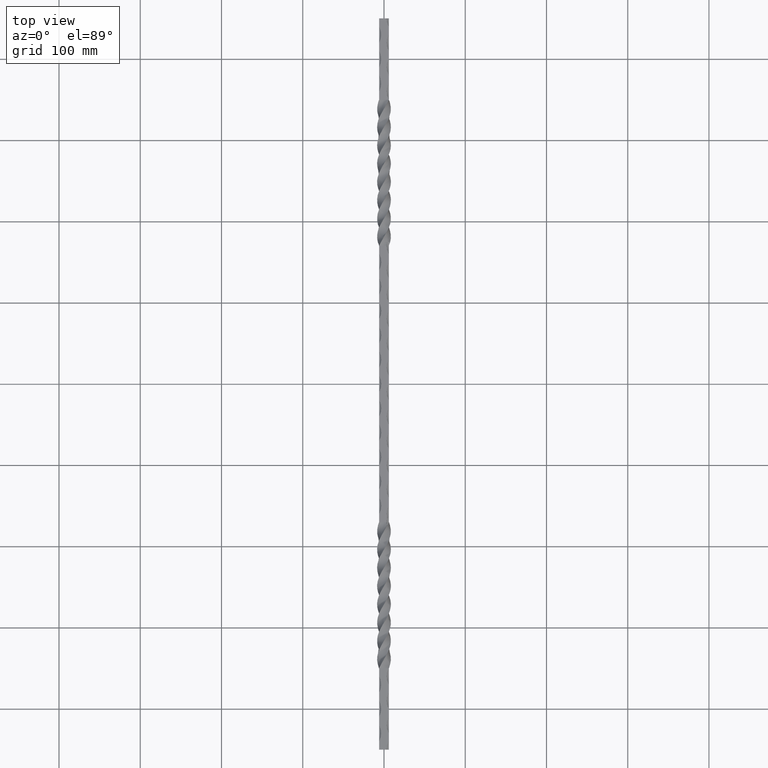
[diagram: clean part render]
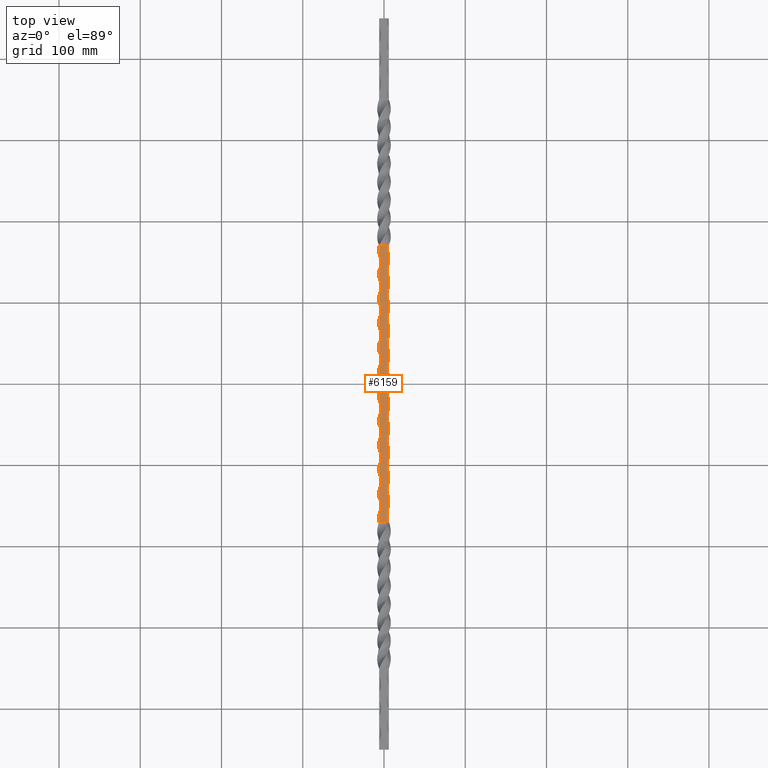
[diagram: same view with one face highlighted and labeled with its STEP entity id]
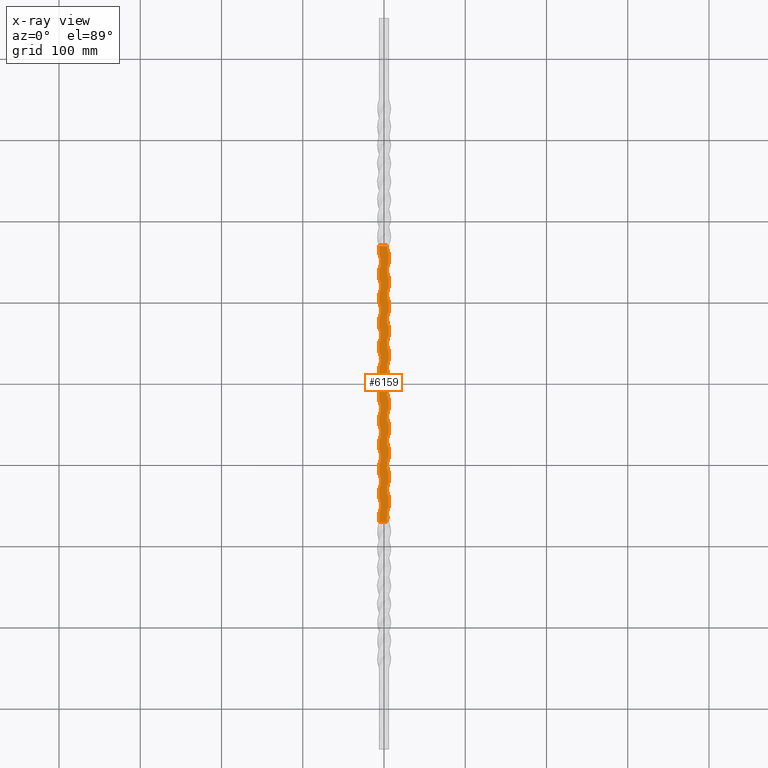
[diagram: x-ray of the same camera — body ghosted, the highlighted face saturated]
A machine part, top view. The second image highlights one B-rep face of the part: STEP entity #6159.
The next image is the same camera in x-ray: the body ghosted, the highlighted face saturated — about 0% of this face is hidden behind the body in this view.
In plain terms, the highlighted planar face has unit normal (0, 0, -1).
Its self-contained STEP definition (entity closure, byte-faithful):
#38 = CARTESIAN_POINT ( 'NONE',  ( 24.74999999999990763, -40.00000000000002132, 6.000000004489439043 ) ) ;
#50 = DIRECTION ( 'NONE',  ( -1.000000000000000000, 0.000000000000000000, -2.394360037036475492E-10 ) ) ;
#58 = DIRECTION ( 'NONE',  ( -1.000000000000000000, -5.224578939412522248E-15, -2.394360037036475492E-10 ) ) ;
#76 = ORIENTED_EDGE ( 'NONE', *, *, #530, .T. ) ;
#97 = CARTESIAN_POINT ( 'NONE',  ( 6.000000000000009770, 29.99999999999997158, 6.000000000000015099 ) ) ;
#178 = DIRECTION ( 'NONE',  ( -2.394360027137099487E-10, -0.000000000000000000, 1.000000000000000000 ) ) ;
#241 = PLANE ( 'NONE',  #12927 ) ;
#253 = VERTEX_POINT ( 'NONE', #7351 ) ;
#270 = AXIS2_PLACEMENT_3D ( 'NONE', #11915, #869, #50 ) ;
#290 = CARTESIAN_POINT ( 'NONE',  ( -6.000000006995538371, 79.99999999999997158, 5.999999997126758799 ) ) ;
#291 = DIRECTION ( 'NONE',  ( -1.000000000000000000, 0.000000000000000000, -2.394360027137099487E-10 ) ) ;
#308 = CIRCLE ( 'NONE', #6689, 21.24999999999991473 ) ;
#310 = LINE ( 'NONE', #3577, #1914 ) ;
#351 = CARTESIAN_POINT ( 'NONE',  ( 24.74999999999990763, -160.0000000000000284, 6.000000004489439043 ) ) ;
#427 = CIRCLE ( 'NONE', #8337, 21.24999999999991473 ) ;
#438 = VERTEX_POINT ( 'NONE', #9987 ) ;
#447 = ORIENTED_EDGE ( 'NONE', *, *, #6530, .F. ) ;
#451 = CARTESIAN_POINT ( 'NONE',  ( 6.000000000000000888, 16.97056276331698754, 6.000000000000000888 ) ) ;
#478 = VERTEX_POINT ( 'NONE', #9252 ) ;
#514 = CIRCLE ( 'NONE', #4911, 21.24999999999992539 ) ;
#530 = EDGE_CURVE ( 'NONE', #613, #3887, #2408, .T. ) ;
#532 = DIRECTION ( 'NONE',  ( -1.000000000000000000, 0.000000000000000000, -2.394360037036474458E-10 ) ) ;
#537 = ORIENTED_EDGE ( 'NONE', *, *, #1621, .T. ) ;
#547 = VERTEX_POINT ( 'NONE', #1356 ) ;
#564 = CARTESIAN_POINT ( 'NONE',  ( 24.74999999999991118, 139.9999999999999716, 6.000000004489439931 ) ) ;
#572 = ORIENTED_EDGE ( 'NONE', *, *, #6654, .T. ) ;
#610 = DIRECTION ( 'NONE',  ( -1.000000000000000000, -5.224578939412522248E-15, -2.394360037036475492E-10 ) ) ;
#613 = VERTEX_POINT ( 'NONE', #10343 ) ;
#657 = VERTEX_POINT ( 'NONE', #6652 ) ;
#671 = EDGE_CURVE ( 'NONE', #1671, #721, #9749, .T. ) ;
#700 = AXIS2_PLACEMENT_3D ( 'NONE', #351, #3248, #5290 ) ;
#721 = VERTEX_POINT ( 'NONE', #12563 ) ;
#769 = AXIS2_PLACEMENT_3D ( 'NONE', #12562, #3641, #532 ) ;
#770 = CARTESIAN_POINT ( 'NONE',  ( 6.000000000000000888, 16.97056276331698754, 6.000000000000000888 ) ) ;
#779 = DIRECTION ( 'NONE',  ( -1.000000000000000000, 0.000000000000000000, -2.394360037036474458E-10 ) ) ;
#786 = EDGE_CURVE ( 'NONE', #4450, #10603, #5357, .T. ) ;
#803 = EDGE_CURVE ( 'NONE', #1331, #11370, #308, .T. ) ;
#869 = DIRECTION ( 'NONE',  ( -2.394360027137099487E-10, -0.000000000000000000, 1.000000000000000000 ) ) ;
#905 = DIRECTION ( 'NONE',  ( -2.394360027137099487E-10, -0.000000000000000000, 1.000000000000000000 ) ) ;
#927 = VECTOR ( 'NONE', #10280, 1000.000000000000000 ) ;
#942 = VERTEX_POINT ( 'NONE', #7262 ) ;
#946 = DIRECTION ( 'NONE',  ( -1.000000000000000000, 0.000000000000000000, -2.394360037036475492E-10 ) ) ;
#953 = VECTOR ( 'NONE', #3741, 1000.000000000000000 ) ;
#985 = ORIENTED_EDGE ( 'NONE', *, *, #11757, .T. ) ;
#1015 = EDGE_CURVE ( 'NONE', #11370, #1924, #3786, .T. ) ;
#1018 = DIRECTION ( 'NONE',  ( -1.000000000000000000, 0.000000000000000000, -2.394360037036474458E-10 ) ) ;
#1023 = CARTESIAN_POINT ( 'NONE',  ( -24.75000000699544955, 29.99999999999997158, 5.999999992637335744 ) ) ;
#1042 = AXIS2_PLACEMENT_3D ( 'NONE', #2961, #3191, #3441 ) ;
#1114 = VECTOR ( 'NONE', #9289, 1000.000000000000000 ) ;
#1154 = CARTESIAN_POINT ( 'NONE',  ( -6.000000006995539259, -130.0000000000000568, 5.999999997126766793 ) ) ;
#1197 = DIRECTION ( 'NONE',  ( -0.000000000000000000, -1.000000000000000000, -0.000000000000000000 ) ) ;
#1233 = EDGE_CURVE ( 'NONE', #1435, #10347, #7241, .T. ) ;
#1284 = CARTESIAN_POINT ( 'NONE',  ( 24.74999999999989697, 169.9999999999999432, 6.000000004489419503 ) ) ;
#1286 = ORIENTED_EDGE ( 'NONE', *, *, #8007, .F. ) ;
#1331 = VERTEX_POINT ( 'NONE', #11615 ) ;
#1356 = CARTESIAN_POINT ( 'NONE',  ( 6.000000000000004441, 69.99999999999997158, 6.000000000000001776 ) ) ;
#1368 = DIRECTION ( 'NONE',  ( -1.000000000000000000, 0.000000000000000000, -2.394360037036474458E-10 ) ) ;
#1373 = CARTESIAN_POINT ( 'NONE',  ( -6.000000006995539259, 16.97056276331698754, 5.999999997126768569 ) ) ;
#1433 = CARTESIAN_POINT ( 'NONE',  ( -6.000000006995539259, 16.97056276331698754, 5.999999997126768569 ) ) ;
#1435 = VERTEX_POINT ( 'NONE', #5710 ) ;
#1462 = VERTEX_POINT ( 'NONE', #4966 ) ;
#1464 = CARTESIAN_POINT ( 'NONE',  ( 3.499999999999982236, -169.9999999999999716, 6.000000004489426608 ) ) ;
#1524 = CIRCLE ( 'NONE', #3969, 21.24999999999991473 ) ;
#1525 = VERTEX_POINT ( 'NONE', #5106 ) ;
#1607 = DIRECTION ( 'NONE',  ( -1.000000000000000000, 0.000000000000000000, -2.394360037036475492E-10 ) ) ;
#1609 = VERTEX_POINT ( 'NONE', #3432 ) ;
#1615 = CARTESIAN_POINT ( 'NONE',  ( -6.000000006995540147, 39.99999999999997868, 5.999999997126761464 ) ) ;
#1621 = EDGE_CURVE ( 'NONE', #6087, #9137, #12109, .T. ) ;
#1643 = VERTEX_POINT ( 'NONE', #7767 ) ;
#1668 = CARTESIAN_POINT ( 'NONE',  ( 6.000000000000000888, 16.97056276331698754, 6.000000000000000888 ) ) ;
#1671 = VERTEX_POINT ( 'NONE', #11244 ) ;
#1691 = ORIENTED_EDGE ( 'NONE', *, *, #6184, .F. ) ;
#1721 = VERTEX_POINT ( 'NONE', #2361 ) ;
#1757 = VERTEX_POINT ( 'NONE', #11288 ) ;
#1782 = AXIS2_PLACEMENT_3D ( 'NONE', #1023, #2051, #12071 ) ;
#1851 = DIRECTION ( 'NONE',  ( -2.394360027137099487E-10, -0.000000000000000000, 1.000000000000000000 ) ) ;
#1852 = AXIS2_PLACEMENT_3D ( 'NONE', #2781, #3776, #779 ) ;
#1873 = DIRECTION ( 'NONE',  ( -1.000000000000000000, -5.224578939412522248E-15, -2.394360037036475492E-10 ) ) ;
#1914 = VECTOR ( 'NONE', #11580, 1000.000000000000000 ) ;
#1924 = VERTEX_POINT ( 'NONE', #5282 ) ;
#2041 = ORIENTED_EDGE ( 'NONE', *, *, #6439, .F. ) ;
#2042 = EDGE_CURVE ( 'NONE', #8782, #10605, #4588, .T. ) ;
#2051 = DIRECTION ( 'NONE',  ( -2.394360027137099487E-10, -0.000000000000000000, 1.000000000000000000 ) ) ;
#2144 = EDGE_CURVE ( 'NONE', #547, #1462, #310, .T. ) ;
#2175 = CARTESIAN_POINT ( 'NONE',  ( 24.74999999999990763, -100.0000000000000142, 6.000000004489439043 ) ) ;
#2252 = ORIENTED_EDGE ( 'NONE', *, *, #3486, .T. ) ;
#2289 = DIRECTION ( 'NONE',  ( -1.000000000000000000, 0.000000000000000000, -2.394360037036474458E-10 ) ) ;
#2328 = EDGE_CURVE ( 'NONE', #11529, #9568, #6454, .T. ) ;
#2346 = VECTOR ( 'NONE', #5626, 1000.000000000000000 ) ;
#2352 = ORIENTED_EDGE ( 'NONE', *, *, #6824, .T. ) ;
#2360 = VECTOR ( 'NONE', #11544, 1000.000000000000000 ) ;
#2361 = CARTESIAN_POINT ( 'NONE',  ( 6.000000000000001776, -110.0000000000000284, 6.000000000000000000 ) ) ;
#2408 = LINE ( 'NONE', #12223, #3186 ) ;
#2411 = CARTESIAN_POINT ( 'NONE',  ( -6.000000006995539259, 169.9999999999999716, 5.999999997126768569 ) ) ;
#2425 = ORIENTED_EDGE ( 'NONE', *, *, #12961, .T. ) ;
#2440 = LINE ( 'NONE', #7209, #10263 ) ;
#2462 = ORIENTED_EDGE ( 'NONE', *, *, #3515, .F. ) ;
#2480 = ORIENTED_EDGE ( 'NONE', *, *, #11353, .F. ) ;
#2594 = CARTESIAN_POINT ( 'NONE',  ( 5.999999999999978684, 159.9999999999999716, 5.999999999999993783 ) ) ;
#2650 = AXIS2_PLACEMENT_3D ( 'NONE', #2702, #11780, #11652 ) ;
#2657 = VERTEX_POINT ( 'NONE', #8457 ) ;
#2669 = CIRCLE ( 'NONE', #6088, 21.24999999999992539 ) ;
#2687 = DIRECTION ( 'NONE',  ( -1.000000000000000000, 0.000000000000000000, -2.394360037036474458E-10 ) ) ;
#2692 = CARTESIAN_POINT ( 'NONE',  ( -6.000000006995541035, -80.00000000000001421, 5.999999997126766793 ) ) ;
#2702 = CARTESIAN_POINT ( 'NONE',  ( -24.75000000699544955, 59.99999999999997158, 5.999999992637333968 ) ) ;
#2708 = CARTESIAN_POINT ( 'NONE',  ( -6.000000006995539259, 169.9999999999999716, 5.999999997126768569 ) ) ;
#2781 = CARTESIAN_POINT ( 'NONE',  ( -24.75000000699544955, -60.00000000000002842, 5.999999992637339297 ) ) ;
#2787 = VECTOR ( 'NONE', #7838, 1000.000000000000000 ) ;
#2802 = VERTEX_POINT ( 'NONE', #3544 ) ;
#2916 = ORIENTED_EDGE ( 'NONE', *, *, #4467, .F. ) ;
#2920 = EDGE_CURVE ( 'NONE', #3907, #5982, #10829, .T. ) ;
#2955 = DIRECTION ( 'NONE',  ( -1.000000000000000000, 0.000000000000000000, -2.394360037036475492E-10 ) ) ;
#2961 = CARTESIAN_POINT ( 'NONE',  ( 24.74999999999990763, -10.00000000000002487, 6.000000004489439043 ) ) ;
#2967 = VERTEX_POINT ( 'NONE', #11274 ) ;
#2977 = ORIENTED_EDGE ( 'NONE', *, *, #5734, .F. ) ;
#2998 = VERTEX_POINT ( 'NONE', #6198 ) ;
#3058 = CARTESIAN_POINT ( 'NONE',  ( 0.000000000000000000, -169.9999999999999716, 6.000000000000000888 ) ) ;
#3081 = DIRECTION ( 'NONE',  ( -0.000000000000000000, -1.000000000000000000, -0.000000000000000000 ) ) ;
#3096 = FACE_OUTER_BOUND ( 'NONE', #5009, .T. ) ;
#3103 = DIRECTION ( 'NONE',  ( -1.000000000000000000, 0.000000000000000000, -2.394360037036475492E-10 ) ) ;
#3166 = CIRCLE ( 'NONE', #270, 21.24999999999991473 ) ;
#3186 = VECTOR ( 'NONE', #6356, 1000.000000000000000 ) ;
#3191 = DIRECTION ( 'NONE',  ( -2.394360027137099487E-10, -0.000000000000000000, 1.000000000000000000 ) ) ;
#3248 = DIRECTION ( 'NONE',  ( -2.394360027137099487E-10, -0.000000000000000000, 1.000000000000000000 ) ) ;
#3432 = CARTESIAN_POINT ( 'NONE',  ( -6.000000006995538371, 109.9999999999999716, 5.999999997126757023 ) ) ;
#3441 = DIRECTION ( 'NONE',  ( -1.000000000000000000, 0.000000000000000000, -2.394360037036475492E-10 ) ) ;
#3447 = CIRCLE ( 'NONE', #8074, 21.24999999999991473 ) ;
#3486 = EDGE_CURVE ( 'NONE', #12070, #9387, #10984, .T. ) ;
#3494 = ORIENTED_EDGE ( 'NONE', *, *, #4238, .F. ) ;
#3515 = EDGE_CURVE ( 'NONE', #5271, #2967, #4394, .T. ) ;
#3544 = CARTESIAN_POINT ( 'NONE',  ( 6.000000000000003553, 9.999999999999966249, 6.000000000000001776 ) ) ;
#3564 = LINE ( 'NONE', #7745, #2787 ) ;
#3577 = CARTESIAN_POINT ( 'NONE',  ( 6.000000000000000888, 16.97056276331698754, 6.000000000000000888 ) ) ;
#3593 = VECTOR ( 'NONE', #5766, 1000.000000000000000 ) ;
#3607 = VERTEX_POINT ( 'NONE', #4649 ) ;
#3641 = DIRECTION ( 'NONE',  ( -2.394360027137099487E-10, -0.000000000000000000, 1.000000000000000000 ) ) ;
#3702 = DIRECTION ( 'NONE',  ( -2.394360027137099487E-10, -0.000000000000000000, 1.000000000000000000 ) ) ;
#3741 = DIRECTION ( 'NONE',  ( -0.000000000000000000, -1.000000000000000000, -0.000000000000000000 ) ) ;
#3772 = DIRECTION ( 'NONE',  ( -2.394360027137099487E-10, -0.000000000000000000, 1.000000000000000000 ) ) ;
#3776 = DIRECTION ( 'NONE',  ( -2.394360027137099487E-10, -0.000000000000000000, 1.000000000000000000 ) ) ;
#3786 = LINE ( 'NONE', #9705, #10375 ) ;
#3860 = CARTESIAN_POINT ( 'NONE',  ( -6.000000006995539259, 159.9999999999999716, 5.999999997126756135 ) ) ;
#3887 = VERTEX_POINT ( 'NONE', #1615 ) ;
#3907 = VERTEX_POINT ( 'NONE', #12634 ) ;
#3923 = EDGE_CURVE ( 'NONE', #2657, #1643, #5002, .T. ) ;
#3938 = CARTESIAN_POINT ( 'NONE',  ( 6.000000000000000888, 16.97056276331698754, 6.000000000000000888 ) ) ;
#3942 = LINE ( 'NONE', #4838, #953 ) ;
#3946 = VERTEX_POINT ( 'NONE', #6641 ) ;
#3969 = AXIS2_PLACEMENT_3D ( 'NONE', #5937, #12938, #946 ) ;
#3983 = ORIENTED_EDGE ( 'NONE', *, *, #7926, .T. ) ;
#4000 = VECTOR ( 'NONE', #12826, 1000.000000000000000 ) ;
#4045 = CIRCLE ( 'NONE', #11927, 21.24999999999992539 ) ;
#4046 = EDGE_CURVE ( 'NONE', #7948, #3887, #5627, .T. ) ;
#4048 = VECTOR ( 'NONE', #9411, 1000.000000000000000 ) ;
#4125 = CARTESIAN_POINT ( 'NONE',  ( 6.000000000000002665, -50.00000000000002842, 6.000000000000000000 ) ) ;
#4144 = AXIS2_PLACEMENT_3D ( 'NONE', #1284, #4313, #9312 ) ;
#4191 = CIRCLE ( 'NONE', #769, 21.24999999999992539 ) ;
#4238 = EDGE_CURVE ( 'NONE', #1643, #547, #3447, .T. ) ;
#4305 = DIRECTION ( 'NONE',  ( -0.000000000000000000, -1.000000000000000000, -0.000000000000000000 ) ) ;
#4313 = DIRECTION ( 'NONE',  ( -2.394360027137099487E-10, -0.000000000000000000, 1.000000000000000000 ) ) ;
#4369 = VECTOR ( 'NONE', #8451, 1000.000000000000000 ) ;
#4394 = CIRCLE ( 'NONE', #1852, 21.24999999999992539 ) ;
#4450 = VERTEX_POINT ( 'NONE', #4618 ) ;
#4459 = CIRCLE ( 'NONE', #5336, 21.24999999999991473 ) ;
#4467 = EDGE_CURVE ( 'NONE', #721, #2657, #12349, .T. ) ;
#4499 = EDGE_CURVE ( 'NONE', #6969, #8782, #4681, .T. ) ;
#4519 = DIRECTION ( 'NONE',  ( -0.000000000000000000, -1.000000000000000000, -0.000000000000000000 ) ) ;
#4522 = ORIENTED_EDGE ( 'NONE', *, *, #1015, .F. ) ;
#4546 = AXIS2_PLACEMENT_3D ( 'NONE', #11063, #9140, #3103 ) ;
#4553 = CARTESIAN_POINT ( 'NONE',  ( -6.000000006995539259, 16.97056276331698754, 5.999999997126768569 ) ) ;
#4588 = CIRCLE ( 'NONE', #5288, 21.24999999999991473 ) ;
#4618 = CARTESIAN_POINT ( 'NONE',  ( 6.000000000000003553, 39.99999999999996447, 6.000000000000001776 ) ) ;
#4649 = CARTESIAN_POINT ( 'NONE',  ( -6.000000006995539259, -160.0000000000000284, 5.999999997126768569 ) ) ;
#4659 = AXIS2_PLACEMENT_3D ( 'NONE', #12674, #3702, #2687 ) ;
#4681 = LINE ( 'NONE', #770, #3593 ) ;
#4725 = EDGE_CURVE ( 'NONE', #7948, #478, #11258, .T. ) ;
#4760 = CARTESIAN_POINT ( 'NONE',  ( -6.000000006995539259, 16.97056276331698754, 5.999999997126768569 ) ) ;
#4774 = EDGE_CURVE ( 'NONE', #9568, #1671, #427, .T. ) ;
#4778 = DIRECTION ( 'NONE',  ( -1.000000000000000000, 1.795949010423053586E-15, -2.394360037036474458E-10 ) ) ;
#4799 = EDGE_CURVE ( 'NONE', #1609, #7338, #4845, .T. ) ;
#4838 = CARTESIAN_POINT ( 'NONE',  ( 6.000000000000000888, 16.97056276331698754, 6.000000000000000888 ) ) ;
#4845 = LINE ( 'NONE', #4760, #2346 ) ;
#4911 = AXIS2_PLACEMENT_3D ( 'NONE', #7999, #13018, #1018 ) ;
#4912 = CARTESIAN_POINT ( 'NONE',  ( -24.75000000699544955, -90.00000000000002842, 5.999999992637341073 ) ) ;
#4966 = CARTESIAN_POINT ( 'NONE',  ( 6.000000000000009770, 59.99999999999997158, 6.000000000000015099 ) ) ;
#4977 = ORIENTED_EDGE ( 'NONE', *, *, #10543, .F. ) ;
#4985 = ORIENTED_EDGE ( 'NONE', *, *, #11380, .T. ) ;
#5002 = LINE ( 'NONE', #451, #2360 ) ;
#5009 = EDGE_LOOP ( 'NONE', ( #1286, #2480, #5031, #7182, #10764, #7792, #4522, #9414, #2041, #12620, #12836, #5378, #7482, #2977, #7564, #4977, #8814, #3494, #10978, #2916, #7828, #9001, #6863, #1691, #7701, #2252, #11989, #4985, #6994, #12152, #6280, #572, #10376, #76, #9685, #11420, #8454, #2352, #447, #2425, #2462, #3983, #6045, #9693, #6004, #537, #10707, #985, #5669 ) ) ;
#5031 = ORIENTED_EDGE ( 'NONE', *, *, #10464, .F. ) ;
#5071 = EDGE_CURVE ( 'NONE', #3607, #9137, #4045, .T. ) ;
#5106 = CARTESIAN_POINT ( 'NONE',  ( -6.000000006995538371, -10.00000000000002487, 5.999999997126762352 ) ) ;
#5171 = CARTESIAN_POINT ( 'NONE',  ( 6.000000000000011546, 149.9999999999999716, 6.000000000000015099 ) ) ;
#5182 = VERTEX_POINT ( 'NONE', #290 ) ;
#5271 = VERTEX_POINT ( 'NONE', #11486 ) ;
#5282 = CARTESIAN_POINT ( 'NONE',  ( 6.000000000000007994, -90.00000000000002842, 6.000000000000014211 ) ) ;
#5288 = AXIS2_PLACEMENT_3D ( 'NONE', #38, #905, #2955 ) ;
#5290 = DIRECTION ( 'NONE',  ( -1.000000000000000000, 0.000000000000000000, -2.394360037036475492E-10 ) ) ;
#5336 = AXIS2_PLACEMENT_3D ( 'NONE', #2175, #10130, #58 ) ;
#5357 = LINE ( 'NONE', #3938, #8341 ) ;
#5378 = ORIENTED_EDGE ( 'NONE', *, *, #10203, .F. ) ;
#5434 = CIRCLE ( 'NONE', #12270, 21.24999999999992539 ) ;
#5482 = AXIS2_PLACEMENT_3D ( 'NONE', #8272, #7309, #10419 ) ;
#5626 = DIRECTION ( 'NONE',  ( -0.000000000000000000, -1.000000000000000000, -0.000000000000000000 ) ) ;
#5627 = CIRCLE ( 'NONE', #1782, 21.24999999999992539 ) ;
#5665 = EDGE_CURVE ( 'NONE', #1757, #9387, #4191, .T. ) ;
#5669 = ORIENTED_EDGE ( 'NONE', *, *, #1233, .T. ) ;
#5710 = CARTESIAN_POINT ( 'NONE',  ( -6.000000006995539259, -170.0000000136172105, 5.999999997126768569 ) ) ;
#5727 = CARTESIAN_POINT ( 'NONE',  ( -6.000000006995539259, 16.97056276331698754, 5.999999997126768569 ) ) ;
#5734 = EDGE_CURVE ( 'NONE', #10603, #2802, #1524, .T. ) ;
#5766 = DIRECTION ( 'NONE',  ( -0.000000000000000000, -1.000000000000000000, -0.000000000000000000 ) ) ;
#5799 = LINE ( 'NONE', #6832, #8951 ) ;
#5871 = CIRCLE ( 'NONE', #13029, 21.24999999999992539 ) ;
#5903 = DIRECTION ( 'NONE',  ( -2.394360027137099487E-10, -0.000000000000000000, 1.000000000000000000 ) ) ;
#5937 = CARTESIAN_POINT ( 'NONE',  ( 24.74999999999991118, 19.99999999999997158, 6.000000004489439931 ) ) ;
#5971 = VECTOR ( 'NONE', #10054, 1000.000000000000000 ) ;
#5982 = VERTEX_POINT ( 'NONE', #9882 ) ;
#6004 = ORIENTED_EDGE ( 'NONE', *, *, #9508, .F. ) ;
#6045 = ORIENTED_EDGE ( 'NONE', *, *, #12146, .F. ) ;
#6087 = VERTEX_POINT ( 'NONE', #1154 ) ;
#6088 = AXIS2_PLACEMENT_3D ( 'NONE', #4912, #5903, #12909 ) ;
#6120 = CARTESIAN_POINT ( 'NONE',  ( -6.000000006995538371, 19.99999999999997513, 5.999999997126761464 ) ) ;
#6140 = CARTESIAN_POINT ( 'NONE',  ( -6.000000006995539259, 16.97056276331698754, 5.999999997126768569 ) ) ;
#6159 = ADVANCED_FACE ( 'NONE', ( #3096 ), #241, .F. ) ;
#6178 = CARTESIAN_POINT ( 'NONE',  ( -6.000000006995539259, 16.97056276331698754, 5.999999997126768569 ) ) ;
#6184 = EDGE_CURVE ( 'NONE', #12106, #11529, #8894, .T. ) ;
#6198 = CARTESIAN_POINT ( 'NONE',  ( -6.000000006995539259, -100.0000000000000142, 5.999999997126766793 ) ) ;
#6280 = ORIENTED_EDGE ( 'NONE', *, *, #8209, .F. ) ;
#6291 = CARTESIAN_POINT ( 'NONE',  ( -6.000000006995540147, -20.00000000000001776, 5.999999997126764129 ) ) ;
#6356 = DIRECTION ( 'NONE',  ( -0.000000000000000000, -1.000000000000000000, -0.000000000000000000 ) ) ;
#6393 = EDGE_CURVE ( 'NONE', #613, #10134, #9365, .T. ) ;
#6410 = CARTESIAN_POINT ( 'NONE',  ( -24.75000000699544955, -150.0000000000000284, 5.999999992637343738 ) ) ;
#6439 = EDGE_CURVE ( 'NONE', #10605, #1331, #3564, .T. ) ;
#6454 = LINE ( 'NONE', #7355, #1114 ) ;
#6530 = EDGE_CURVE ( 'NONE', #253, #12863, #5434, .T. ) ;
#6628 = DIRECTION ( 'NONE',  ( -2.394360027137099487E-10, -0.000000000000000000, 1.000000000000000000 ) ) ;
#6641 = CARTESIAN_POINT ( 'NONE',  ( -6.000000006995539259, 129.9999999999999716, 5.999999997126757023 ) ) ;
#6652 = CARTESIAN_POINT ( 'NONE',  ( 6.000000000000007105, -150.0000000000000284, 6.000000000000014211 ) ) ;
#6654 = EDGE_CURVE ( 'NONE', #5182, #10134, #11845, .T. ) ;
#6657 = LINE ( 'NONE', #8815, #4000 ) ;
#6689 = AXIS2_PLACEMENT_3D ( 'NONE', #6867, #8934, #1873 ) ;
#6693 = DIRECTION ( 'NONE',  ( -0.000000000000000000, -1.000000000000000000, -0.000000000000000000 ) ) ;
#6824 = EDGE_CURVE ( 'NONE', #1525, #12863, #10133, .T. ) ;
#6832 = CARTESIAN_POINT ( 'NONE',  ( 6.000000000000000888, 16.97056276331698754, 6.000000000000000888 ) ) ;
#6863 = ORIENTED_EDGE ( 'NONE', *, *, #2328, .F. ) ;
#6867 = CARTESIAN_POINT ( 'NONE',  ( 24.74999999999990763, -70.00000000000001421, 6.000000004489439043 ) ) ;
#6886 = CARTESIAN_POINT ( 'NONE',  ( -6.000000006995540147, 69.99999999999998579, 5.999999997126759688 ) ) ;
#6969 = VERTEX_POINT ( 'NONE', #11851 ) ;
#6974 = CARTESIAN_POINT ( 'NONE',  ( 6.000000000000008882, -30.00000000000002842, 6.000000000000014211 ) ) ;
#6994 = ORIENTED_EDGE ( 'NONE', *, *, #8339, .F. ) ;
#7012 = VECTOR ( 'NONE', #6693, 1000.000000000000000 ) ;
#7182 = ORIENTED_EDGE ( 'NONE', *, *, #2920, .F. ) ;
#7183 = CARTESIAN_POINT ( 'NONE',  ( -24.75000000699544955, -120.0000000000000568, 5.999999992637341961 ) ) ;
#7209 = CARTESIAN_POINT ( 'NONE',  ( 6.000000000000000888, 16.97056276331698754, 6.000000000000000888 ) ) ;
#7241 = LINE ( 'NONE', #3058, #5971 ) ;
#7262 = CARTESIAN_POINT ( 'NONE',  ( 6.000000000000008882, -2.775557561562891351E-14, 6.000000000000014211 ) ) ;
#7309 = DIRECTION ( 'NONE',  ( -2.394360027137099487E-10, -0.000000000000000000, 1.000000000000000000 ) ) ;
#7338 = VERTEX_POINT ( 'NONE', #12841 ) ;
#7351 = CARTESIAN_POINT ( 'NONE',  ( -6.000000006995538371, -40.00000000000002132, 5.999999997126764129 ) ) ;
#7355 = CARTESIAN_POINT ( 'NONE',  ( 6.000000000000000888, 16.97056276331698754, 6.000000000000000888 ) ) ;
#7367 = EDGE_CURVE ( 'NONE', #1525, #478, #5871, .T. ) ;
#7456 = CIRCLE ( 'NONE', #4659, 21.24999999999992539 ) ;
#7482 = ORIENTED_EDGE ( 'NONE', *, *, #8463, .F. ) ;
#7564 = ORIENTED_EDGE ( 'NONE', *, *, #786, .F. ) ;
#7582 = EDGE_CURVE ( 'NONE', #2998, #9344, #8404, .T. ) ;
#7640 = AXIS2_PLACEMENT_3D ( 'NONE', #8574, #6628, #610 ) ;
#7700 = VECTOR ( 'NONE', #9587, 1000.000000000000000 ) ;
#7701 = ORIENTED_EDGE ( 'NONE', *, *, #12845, .F. ) ;
#7745 = CARTESIAN_POINT ( 'NONE',  ( 6.000000000000000888, 16.97056276331698754, 6.000000000000000888 ) ) ;
#7753 = CIRCLE ( 'NONE', #5482, 21.24999999999991473 ) ;
#7767 = CARTESIAN_POINT ( 'NONE',  ( 6.000000000000010658, 89.99999999999997158, 6.000000000000015099 ) ) ;
#7792 = ORIENTED_EDGE ( 'NONE', *, *, #8880, .F. ) ;
#7828 = ORIENTED_EDGE ( 'NONE', *, *, #671, .F. ) ;
#7838 = DIRECTION ( 'NONE',  ( -0.000000000000000000, -1.000000000000000000, -0.000000000000000000 ) ) ;
#7857 = CARTESIAN_POINT ( 'NONE',  ( -24.75000000699544955, -2.775557561562891351E-14, 5.999999992637336632 ) ) ;
#7926 = EDGE_CURVE ( 'NONE', #5271, #12499, #6657, .T. ) ;
#7948 = VERTEX_POINT ( 'NONE', #6120 ) ;
#7999 = CARTESIAN_POINT ( 'NONE',  ( -24.75000000699544955, 119.9999999999999716, 5.999999992637331303 ) ) ;
#8007 = EDGE_CURVE ( 'NONE', #438, #10347, #7753, .T. ) ;
#8074 = AXIS2_PLACEMENT_3D ( 'NONE', #8311, #9144, #10237 ) ;
#8209 = EDGE_CURVE ( 'NONE', #5182, #7338, #7456, .T. ) ;
#8272 = CARTESIAN_POINT ( 'NONE',  ( 24.74999999999989697, -169.9999999999999432, 6.000000004489426608 ) ) ;
#8311 = CARTESIAN_POINT ( 'NONE',  ( 24.74999999999991118, 79.99999999999997158, 6.000000004489439931 ) ) ;
#8337 = AXIS2_PLACEMENT_3D ( 'NONE', #564, #10500, #1607 ) ;
#8339 = EDGE_CURVE ( 'NONE', #1609, #3946, #514, .T. ) ;
#8341 = VECTOR ( 'NONE', #8764, 1000.000000000000000 ) ;
#8389 = DIRECTION ( 'NONE',  ( 2.394360027137099487E-10, 0.000000000000000000, -1.000000000000000000 ) ) ;
#8404 = LINE ( 'NONE', #6140, #11836 ) ;
#8451 = DIRECTION ( 'NONE',  ( -0.000000000000000000, -1.000000000000000000, -0.000000000000000000 ) ) ;
#8454 = ORIENTED_EDGE ( 'NONE', *, *, #7367, .F. ) ;
#8457 = CARTESIAN_POINT ( 'NONE',  ( 6.000000000000004441, 99.99999999999995737, 6.000000000000001776 ) ) ;
#8463 = EDGE_CURVE ( 'NONE', #2802, #942, #2440, .T. ) ;
#8574 = CARTESIAN_POINT ( 'NONE',  ( 24.74999999999991118, 109.9999999999999716, 6.000000004489439931 ) ) ;
#8576 = VECTOR ( 'NONE', #11546, 1000.000000000000000 ) ;
#8610 = CARTESIAN_POINT ( 'NONE',  ( 3.499999999999965361, 169.9999999994830375, 6.000000000031989522 ) ) ;
#8764 = DIRECTION ( 'NONE',  ( -0.000000000000000000, -1.000000000000000000, -0.000000000000000000 ) ) ;
#8768 = CARTESIAN_POINT ( 'NONE',  ( -24.75000000699544955, -30.00000000000002842, 5.999999992637338408 ) ) ;
#8782 = VERTEX_POINT ( 'NONE', #6974 ) ;
#8814 = ORIENTED_EDGE ( 'NONE', *, *, #2144, .F. ) ;
#8815 = CARTESIAN_POINT ( 'NONE',  ( -6.000000006995539259, 16.97056276331698754, 5.999999997126768569 ) ) ;
#8875 = DIRECTION ( 'NONE',  ( -0.000000000000000000, -1.000000000000000000, -0.000000000000000000 ) ) ;
#8880 = EDGE_CURVE ( 'NONE', #1924, #1721, #4459, .T. ) ;
#8894 = CIRCLE ( 'NONE', #4144, 21.24999999999991473 ) ;
#8934 = DIRECTION ( 'NONE',  ( -2.394360027137099487E-10, -0.000000000000000000, 1.000000000000000000 ) ) ;
#8951 = VECTOR ( 'NONE', #11738, 1000.000000000000000 ) ;
#9001 = ORIENTED_EDGE ( 'NONE', *, *, #4774, .F. ) ;
#9137 = VERTEX_POINT ( 'NONE', #11606 ) ;
#9140 = DIRECTION ( 'NONE',  ( -2.394360027137099487E-10, -0.000000000000000000, 1.000000000000000000 ) ) ;
#9144 = DIRECTION ( 'NONE',  ( -2.394360027137099487E-10, -0.000000000000000000, 1.000000000000000000 ) ) ;
#9252 = CARTESIAN_POINT ( 'NONE',  ( -6.000000006995540147, 9.999999999999980460, 5.999999997126762352 ) ) ;
#9257 = DIRECTION ( 'NONE',  ( -0.000000000000000000, -1.000000000000000000, -0.000000000000000000 ) ) ;
#9289 = DIRECTION ( 'NONE',  ( -0.000000000000000000, -1.000000000000000000, -0.000000000000000000 ) ) ;
#9312 = DIRECTION ( 'NONE',  ( -1.000000000000000000, 0.000000000000000000, -2.394360037036475492E-10 ) ) ;
#9344 = VERTEX_POINT ( 'NONE', #9813 ) ;
#9365 = CIRCLE ( 'NONE', #2650, 21.24999999999992539 ) ;
#9387 = VERTEX_POINT ( 'NONE', #3860 ) ;
#9411 = DIRECTION ( 'NONE',  ( 1.000000000000000000, 0.000000000000000000, 2.394360027137099487E-10 ) ) ;
#9414 = ORIENTED_EDGE ( 'NONE', *, *, #803, .F. ) ;
#9415 = CARTESIAN_POINT ( 'NONE',  ( 6.000000000000001776, -80.00000000000002842, 6.000000000000000000 ) ) ;
#9508 = EDGE_CURVE ( 'NONE', #6087, #9344, #11232, .T. ) ;
#9568 = VERTEX_POINT ( 'NONE', #5171 ) ;
#9587 = DIRECTION ( 'NONE',  ( -0.000000000000000000, -1.000000000000000000, -0.000000000000000000 ) ) ;
#9634 = CARTESIAN_POINT ( 'NONE',  ( -6.000000006995539259, 16.97056276331698754, 5.999999997126768569 ) ) ;
#9652 = CARTESIAN_POINT ( 'NONE',  ( -6.000000006995539259, 16.97056276331698754, 5.999999997126768569 ) ) ;
#9685 = ORIENTED_EDGE ( 'NONE', *, *, #4046, .F. ) ;
#9693 = ORIENTED_EDGE ( 'NONE', *, *, #7582, .T. ) ;
#9705 = CARTESIAN_POINT ( 'NONE',  ( 6.000000000000000888, 16.97056276331698754, 6.000000000000000888 ) ) ;
#9749 = LINE ( 'NONE', #1668, #7700 ) ;
#9813 = CARTESIAN_POINT ( 'NONE',  ( -6.000000006995541035, -110.0000000000000426, 5.999999997126766793 ) ) ;
#9882 = CARTESIAN_POINT ( 'NONE',  ( 6.000000000000000888, -140.0000000000000568, 6.000000000000000000 ) ) ;
#9987 = CARTESIAN_POINT ( 'NONE',  ( 4.096610447677099032, -164.9999999999999716, 5.999999999544274765 ) ) ;
#10046 = EDGE_CURVE ( 'NONE', #1721, #3907, #3942, .T. ) ;
#10054 = DIRECTION ( 'NONE',  ( 1.000000000000000000, 0.000000000000000000, -0.000000000000000000 ) ) ;
#10130 = DIRECTION ( 'NONE',  ( -2.394360027137099487E-10, -0.000000000000000000, 1.000000000000000000 ) ) ;
#10133 = LINE ( 'NONE', #4553, #8576 ) ;
#10134 = VERTEX_POINT ( 'NONE', #6886 ) ;
#10202 = CIRCLE ( 'NONE', #1042, 21.24999999999991473 ) ;
#10203 = EDGE_CURVE ( 'NONE', #942, #6969, #10202, .T. ) ;
#10237 = DIRECTION ( 'NONE',  ( -1.000000000000000000, -5.224578939412522248E-15, -2.394360037036475492E-10 ) ) ;
#10263 = VECTOR ( 'NONE', #1197, 1000.000000000000000 ) ;
#10280 = DIRECTION ( 'NONE',  ( -0.000000000000000000, -1.000000000000000000, -0.000000000000000000 ) ) ;
#10308 = DIRECTION ( 'NONE',  ( -2.394360027137099487E-10, -0.000000000000000000, 1.000000000000000000 ) ) ;
#10343 = CARTESIAN_POINT ( 'NONE',  ( -6.000000006995538371, 49.99999999999997158, 5.999999997126759688 ) ) ;
#10347 = VERTEX_POINT ( 'NONE', #1464 ) ;
#10375 = VECTOR ( 'NONE', #10620, 1000.000000000000000 ) ;
#10376 = ORIENTED_EDGE ( 'NONE', *, *, #6393, .F. ) ;
#10419 = DIRECTION ( 'NONE',  ( -1.000000000000000000, 2.612289469706261282E-14, -2.394360037036475492E-10 ) ) ;
#10464 = EDGE_CURVE ( 'NONE', #5982, #657, #5799, .T. ) ;
#10500 = DIRECTION ( 'NONE',  ( -2.394360027137099487E-10, -0.000000000000000000, 1.000000000000000000 ) ) ;
#10543 = EDGE_CURVE ( 'NONE', #1462, #4450, #3166, .T. ) ;
#10603 = VERTEX_POINT ( 'NONE', #97 ) ;
#10605 = VERTEX_POINT ( 'NONE', #4125 ) ;
#10620 = DIRECTION ( 'NONE',  ( -0.000000000000000000, -1.000000000000000000, -0.000000000000000000 ) ) ;
#10707 = ORIENTED_EDGE ( 'NONE', *, *, #5071, .F. ) ;
#10764 = ORIENTED_EDGE ( 'NONE', *, *, #10046, .F. ) ;
#10770 = LINE ( 'NONE', #5727, #7012 ) ;
#10829 = CIRCLE ( 'NONE', #4546, 21.24999999999991473 ) ;
#10917 = VECTOR ( 'NONE', #3081, 1000.000000000000000 ) ;
#10978 = ORIENTED_EDGE ( 'NONE', *, *, #3923, .F. ) ;
#10984 = LINE ( 'NONE', #12443, #12066 ) ;
#11063 = CARTESIAN_POINT ( 'NONE',  ( 24.74999999999990763, -130.0000000000000568, 6.000000004489439043 ) ) ;
#11111 = LINE ( 'NONE', #9652, #12985 ) ;
#11161 = VECTOR ( 'NONE', #4519, 1000.000000000000000 ) ;
#11232 = CIRCLE ( 'NONE', #12705, 21.24999999999992539 ) ;
#11244 = CARTESIAN_POINT ( 'NONE',  ( 6.000000000000005329, 129.9999999999999432, 6.000000000000001776 ) ) ;
#11258 = LINE ( 'NONE', #1433, #4369 ) ;
#11274 = CARTESIAN_POINT ( 'NONE',  ( -6.000000006995540147, -50.00000000000001421, 5.999999997126765017 ) ) ;
#11288 = CARTESIAN_POINT ( 'NONE',  ( -6.000000006995538371, 139.9999999999999716, 5.999999997126756135 ) ) ;
#11353 = EDGE_CURVE ( 'NONE', #657, #438, #11431, .T. ) ;
#11370 = VERTEX_POINT ( 'NONE', #9415 ) ;
#11380 = EDGE_CURVE ( 'NONE', #1757, #3946, #11585, .T. ) ;
#11420 = ORIENTED_EDGE ( 'NONE', *, *, #4725, .T. ) ;
#11431 = CIRCLE ( 'NONE', #700, 21.24999999999991473 ) ;
#11486 = CARTESIAN_POINT ( 'NONE',  ( -6.000000006995538371, -70.00000000000001421, 5.999999997126765017 ) ) ;
#11529 = VERTEX_POINT ( 'NONE', #2594 ) ;
#11544 = DIRECTION ( 'NONE',  ( -0.000000000000000000, -1.000000000000000000, -0.000000000000000000 ) ) ;
#11546 = DIRECTION ( 'NONE',  ( -0.000000000000000000, -1.000000000000000000, -0.000000000000000000 ) ) ;
#11580 = DIRECTION ( 'NONE',  ( -0.000000000000000000, -1.000000000000000000, -0.000000000000000000 ) ) ;
#11585 = LINE ( 'NONE', #12372, #927 ) ;
#11606 = CARTESIAN_POINT ( 'NONE',  ( -6.000000006995541035, -140.0000000000000000, 5.999999997126768569 ) ) ;
#11615 = CARTESIAN_POINT ( 'NONE',  ( 6.000000000000007994, -60.00000000000002842, 6.000000000000014211 ) ) ;
#11652 = DIRECTION ( 'NONE',  ( -1.000000000000000000, 1.632680918566412315E-15, -2.394360037036474458E-10 ) ) ;
#11738 = DIRECTION ( 'NONE',  ( -0.000000000000000000, -1.000000000000000000, -0.000000000000000000 ) ) ;
#11757 = EDGE_CURVE ( 'NONE', #3607, #1435, #11111, .T. ) ;
#11780 = DIRECTION ( 'NONE',  ( -2.394360027137099487E-10, -0.000000000000000000, 1.000000000000000000 ) ) ;
#11836 = VECTOR ( 'NONE', #4305, 1000.000000000000000 ) ;
#11845 = LINE ( 'NONE', #6178, #10917 ) ;
#11851 = CARTESIAN_POINT ( 'NONE',  ( 6.000000000000002665, -20.00000000000003197, 6.000000000000000000 ) ) ;
#11915 = CARTESIAN_POINT ( 'NONE',  ( 24.74999999999991118, 49.99999999999997158, 6.000000004489439931 ) ) ;
#11927 = AXIS2_PLACEMENT_3D ( 'NONE', #6410, #10308, #1368 ) ;
#11989 = ORIENTED_EDGE ( 'NONE', *, *, #5665, .F. ) ;
#12066 = VECTOR ( 'NONE', #9257, 1000.000000000000000 ) ;
#12070 = VERTEX_POINT ( 'NONE', #2708 ) ;
#12071 = DIRECTION ( 'NONE',  ( -1.000000000000000000, 1.795949010423053586E-15, -2.394360037036474458E-10 ) ) ;
#12106 = VERTEX_POINT ( 'NONE', #8610 ) ;
#12109 = LINE ( 'NONE', #9634, #11161 ) ;
#12146 = EDGE_CURVE ( 'NONE', #2998, #12499, #2669, .T. ) ;
#12152 = ORIENTED_EDGE ( 'NONE', *, *, #4799, .T. ) ;
#12189 = LINE ( 'NONE', #2411, #4048 ) ;
#12223 = CARTESIAN_POINT ( 'NONE',  ( -6.000000006995539259, 16.97056276331698754, 5.999999997126768569 ) ) ;
#12270 = AXIS2_PLACEMENT_3D ( 'NONE', #8768, #3772, #4778 ) ;
#12349 = CIRCLE ( 'NONE', #7640, 21.24999999999991473 ) ;
#12372 = CARTESIAN_POINT ( 'NONE',  ( -6.000000006995539259, 16.97056276331698754, 5.999999997126768569 ) ) ;
#12443 = CARTESIAN_POINT ( 'NONE',  ( -6.000000006995539259, 16.97056276331698754, 5.999999997126768569 ) ) ;
#12499 = VERTEX_POINT ( 'NONE', #2692 ) ;
#12562 = CARTESIAN_POINT ( 'NONE',  ( -24.75000000699544955, 149.9999999999999716, 5.999999992637330415 ) ) ;
#12563 = CARTESIAN_POINT ( 'NONE',  ( 6.000000000000010658, 119.9999999999999716, 6.000000000000015099 ) ) ;
#12620 = ORIENTED_EDGE ( 'NONE', *, *, #2042, .F. ) ;
#12634 = CARTESIAN_POINT ( 'NONE',  ( 6.000000000000007105, -120.0000000000000568, 6.000000000000014211 ) ) ;
#12674 = CARTESIAN_POINT ( 'NONE',  ( -24.75000000699544955, 89.99999999999997158, 5.999999992637333079 ) ) ;
#12705 = AXIS2_PLACEMENT_3D ( 'NONE', #7183, #178, #2289 ) ;
#12792 = DIRECTION ( 'NONE',  ( -1.000000000000000000, 0.000000000000000000, -2.394360037036474458E-10 ) ) ;
#12826 = DIRECTION ( 'NONE',  ( -0.000000000000000000, -1.000000000000000000, -0.000000000000000000 ) ) ;
#12836 = ORIENTED_EDGE ( 'NONE', *, *, #4499, .F. ) ;
#12841 = CARTESIAN_POINT ( 'NONE',  ( -6.000000006995539259, 99.99999999999997158, 5.999999997126758799 ) ) ;
#12845 = EDGE_CURVE ( 'NONE', #12070, #12106, #12189, .T. ) ;
#12863 = VERTEX_POINT ( 'NONE', #6291 ) ;
#12909 = DIRECTION ( 'NONE',  ( -1.000000000000000000, 0.000000000000000000, -2.394360037036474458E-10 ) ) ;
#12927 = AXIS2_PLACEMENT_3D ( 'NONE', #1373, #8389, #291 ) ;
#12938 = DIRECTION ( 'NONE',  ( -2.394360027137099487E-10, -0.000000000000000000, 1.000000000000000000 ) ) ;
#12961 = EDGE_CURVE ( 'NONE', #253, #2967, #10770, .T. ) ;
#12985 = VECTOR ( 'NONE', #8875, 1000.000000000000000 ) ;
#13018 = DIRECTION ( 'NONE',  ( -2.394360027137099487E-10, -0.000000000000000000, 1.000000000000000000 ) ) ;
#13029 = AXIS2_PLACEMENT_3D ( 'NONE', #7857, #1851, #12792 ) ;